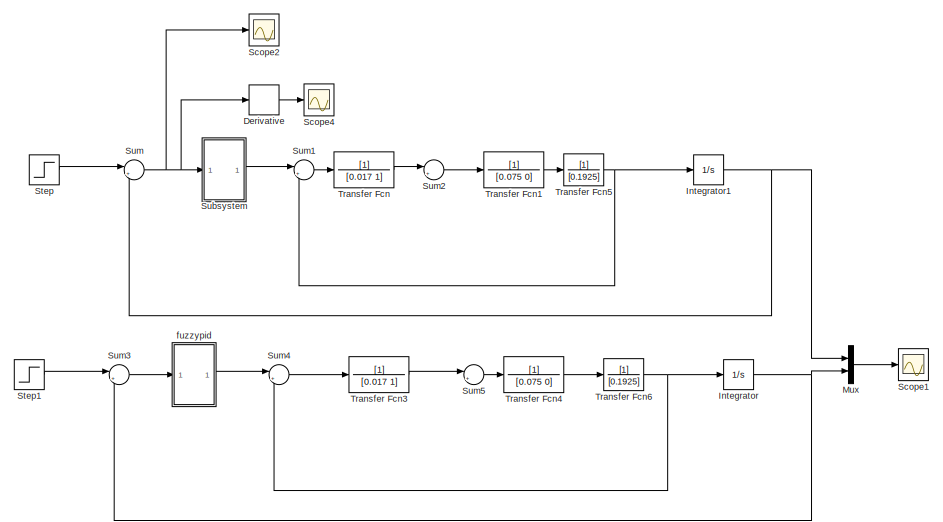
[diagram: root canvas - part 1/2, left side, full height]
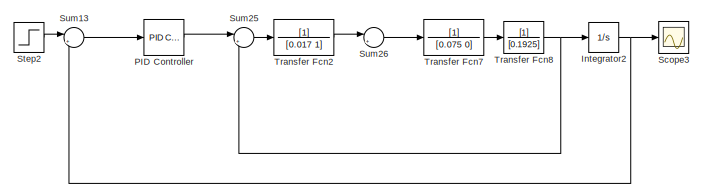
[diagram: root canvas - part 2/2, bottom right region]
MODEL slx_b7010f77cb78
KIND model
BLOCK [Derivative] Derivative
BLOCK [Integrator] Integrator
  Ports = [1, 1]
BLOCK [Integrator] Integrator1
  Ports = [1, 1]
BLOCK [Integrator] Integrator2
  Ports = [1, 1]
BLOCK [Mux] Mux
  DisplayOption = bar
  Inputs = 2
  Ports = [2, 1]
BLOCK [Reference] PID Controller  REF=simulink/Continuous/PID Controller
  AntiWindupMode = none
  Controller = PID
  D = -0.39390939873363
  DOutDataTypeStr = Inherit: Inherit via internal rule
  DOutMax = []
  DOutMin = []
  DParamDataTypeStr = Inherit: Inherit via internal rule
  DParamMax = []
  DParamMin = []
  DifferentiatorICPrevScaledInput = 0
  DifferentiatorOutDataTypeStr = Inherit: Inherit via internal rule
  DifferentiatorOutMax = []
  DifferentiatorOutMin = []
  ExternalReset = none
  FilterContinuousStateAttributes = ''
  FilterMethod = Forward Euler
  FilterOutDataTypeStr = Inherit: Inherit via internal rule
  FilterOutMax = []
  FilterOutMin = []
  FilterRTWStateStorageClass = Auto
  FilterStateMustResolveToSignalObject = off
  Form = Parallel
  I = 3.80775639731004
  IOutDataTypeStr = Inherit: Inherit via internal rule
  IOutMax = []
  IOutMin = []
  IParamDataTypeStr = Inherit: Inherit via internal rule
  IParamMax = []
  IParamMin = []
  IgnoreLimit = off
  InitialConditionForFilter = 0
  InitialConditionForIntegrator = 0
  InitialConditionSource = internal
  IntegratorContinuousStateAttributes = ''
  IntegratorMethod = Forward Euler
  IntegratorOutDataTypeStr = Inherit: Inherit via internal rule
  IntegratorOutMax = []
  IntegratorOutMin = []
  IntegratorRTWStateStorageClass = Auto
  IntegratorStateMustResolveToSignalObject = off
  Kb = 1
  KbOutDataTypeStr = Inherit: Inherit via internal rule
  KbOutMax = []
  KbOutMin = []
  KbParamDataTypeStr = Inherit: Inherit via internal rule
  KbParamMax = []
  KbParamMin = []
  Kt = 1
  KtOutDataTypeStr = Inherit: Inherit via internal rule
  KtOutMax = []
  KtOutMin = []
  KtParamDataTypeStr = Inherit: Inherit via internal rule
  KtParamMax = []
  KtParamMin = []
  LimitOutput = off
  LinearizeAsGain = on
  LockScale = off
  LowerSaturationLimit = -inf
  N = 19.6567757288827
  NOutDataTypeStr = Inherit: Inherit via internal rule
  NOutMax = []
  NOutMin = []
  NParamDataTypeStr = Inherit: Inherit via internal rule
  NParamMax = []
  NParamMin = []
  P = 22.0696160979341
  POutDataTypeStr = Inherit: Inherit via internal rule
  POutMax = []
  POutMin = []
  PParamDataTypeStr = Inherit: Inherit via internal rule
  PParamMax = []
  PParamMin = []
  Ports = [1, 1]
  RndMeth = Floor
  SampleTime = -1
  SaturateOnIntegerOverflow = off
  SaturationOutDataTypeStr = Inherit: Same as input
  SaturationOutMax = []
  SaturationOutMin = []
  SourceBlock = simulink/Continuous/PID Controller
  SourceType = PID 1dof
  SumAccumDataTypeStr = Inherit: Inherit via internal rule
  SumDAccumDataTypeStr = Inherit: Inherit via internal rule
  SumDOutDataTypeStr = Inherit: Inherit via internal rule
  SumDOutMax = []
  SumDOutMin = []
  SumI1AccumDataTypeStr = Inherit: Inherit via internal rule
  SumI1OutDataTypeStr = Inherit: Inherit via internal rule
  SumI1OutMax = []
  SumI1OutMin = []
  SumI2AccumDataTypeStr = Inherit: Inherit via internal rule
  SumI2OutDataTypeStr = Inherit: Inherit via internal rule
  SumI2OutMax = []
  SumI2OutMin = []
  SumI3AccumDataTypeStr = Inherit: Inherit via internal rule
  SumI3OutDataTypeStr = Inherit: Inherit via internal rule
  SumI3OutMax = []
  SumI3OutMin = []
  SumOutDataTypeStr = Inherit: Inherit via internal rule
  SumOutMax = []
  SumOutMin = []
  TimeDomain = Continuous-time
  TrackingMode = off
  UpperSaturationLimit = inf
  UseFilter = on
  ZeroCross = on
BLOCK [Scope] Scope1
  Floating = off
  NumInputPorts = 1
  Ports = [1]
  SaveName = ScopeData1
  ShowLegends = off
  YMax = 0
  YMin = -1.2e-11
BLOCK [Scope] Scope2
  Floating = off
  NumInputPorts = 1
  Ports = [1]
  SaveName = ScopeData3
  ShowLegends = off
  YMax = 0
  YMin = -1.2e-11
BLOCK [Scope] Scope3
  Floating = off
  NumInputPorts = 1
  Ports = [1]
  ShowLegends = off
  YMax = 0
  YMin = -1.2e-11
BLOCK [Scope] Scope4
  Floating = off
  LimitDataPoints = off
  NumInputPorts = 1
  Ports = [1]
  SaveName = ScopeData4
  ShowLegends = off
  YMax = 0
  YMin = -1.2e-11
BLOCK [Step] Step
  After = 50
  SampleTime = 0
BLOCK [Step] Step1
  After = 50
  SampleTime = 0
BLOCK [Step] Step2
  After = 50
  SampleTime = 0
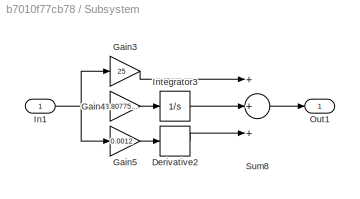
BLOCK [SubSystem] Subsystem
  Ports = [1, 1]
  RequestExecContextInheritance = off
BLOCK [Derivative] Subsystem/Derivative2
BLOCK [Gain] Subsystem/Gain3
  Gain = 25
  OutDataTypeStr = Inherit: Inherit via internal rule
  ParamDataTypeStr = Inherit: Inherit via internal rule
  SaturateOnIntegerOverflow = off
BLOCK [Gain] Subsystem/Gain4
  Gain = 3.80775639731004
  OutDataTypeStr = Inherit: Inherit via internal rule
  ParamDataTypeStr = Inherit: Inherit via internal rule
  SaturateOnIntegerOverflow = off
BLOCK [Gain] Subsystem/Gain5
  Gain = 0.0012
  OutDataTypeStr = Inherit: Inherit via internal rule
  ParamDataTypeStr = Inherit: Inherit via internal rule
  SaturateOnIntegerOverflow = off
BLOCK [Inport] Subsystem/In1
  IconDisplay = Port number
BLOCK [Integrator] Subsystem/Integrator3
  Ports = [1, 1]
BLOCK [Outport] Subsystem/Out1
  IconDisplay = Port number
BLOCK [Sum] Subsystem/Sum8
  InputSameDT = off
  Inputs = +++
  OutDataTypeStr = Inherit: Inherit via internal rule
  Ports = [3, 1]
  SaturateOnIntegerOverflow = off
BLOCK [Sum] Sum
  IconShape = round
  InputSameDT = off
  Inputs = |+-
  OutDataTypeStr = Inherit: Inherit via internal rule
  Ports = [2, 1]
  SaturateOnIntegerOverflow = off
BLOCK [Sum] Sum1
  IconShape = round
  InputSameDT = off
  Inputs = |+-
  OutDataTypeStr = Inherit: Inherit via internal rule
  Ports = [2, 1]
  SaturateOnIntegerOverflow = off
BLOCK [Sum] Sum13
  IconShape = round
  InputSameDT = off
  Inputs = |+-
  OutDataTypeStr = Inherit: Inherit via internal rule
  Ports = [2, 1]
  SaturateOnIntegerOverflow = off
BLOCK [Sum] Sum2
  IconShape = round
  InputSameDT = off
  Inputs = |+-
  OutDataTypeStr = Inherit: Inherit via internal rule
  Ports = [2, 1]
  SaturateOnIntegerOverflow = off
BLOCK [Sum] Sum25
  IconShape = round
  InputSameDT = off
  Inputs = |+-
  OutDataTypeStr = Inherit: Inherit via internal rule
  Ports = [2, 1]
  SaturateOnIntegerOverflow = off
BLOCK [Sum] Sum26
  IconShape = round
  InputSameDT = off
  Inputs = |+-
  OutDataTypeStr = Inherit: Inherit via internal rule
  Ports = [2, 1]
  SaturateOnIntegerOverflow = off
BLOCK [Sum] Sum3
  IconShape = round
  InputSameDT = off
  Inputs = |+-
  OutDataTypeStr = Inherit: Inherit via internal rule
  Ports = [2, 1]
  SaturateOnIntegerOverflow = off
BLOCK [Sum] Sum4
  IconShape = round
  InputSameDT = off
  Inputs = |+-
  OutDataTypeStr = Inherit: Inherit via internal rule
  Ports = [2, 1]
  SaturateOnIntegerOverflow = off
BLOCK [Sum] Sum5
  IconShape = round
  InputSameDT = off
  Inputs = |+-
  OutDataTypeStr = Inherit: Inherit via internal rule
  Ports = [2, 1]
  SaturateOnIntegerOverflow = off
BLOCK [TransferFcn] Transfer Fcn
  Denominator = [0.017 1]
BLOCK [TransferFcn] Transfer Fcn1
  Denominator = [0.075 0]
BLOCK [TransferFcn] Transfer Fcn2
  Denominator = [0.017 1]
BLOCK [TransferFcn] Transfer Fcn3
  Denominator = [0.017 1]
BLOCK [TransferFcn] Transfer Fcn4
  Denominator = [0.075 0]
BLOCK [TransferFcn] Transfer Fcn5
  Denominator = [0.1925]
BLOCK [TransferFcn] Transfer Fcn6
  Denominator = [0.1925]
BLOCK [TransferFcn] Transfer Fcn7
  Denominator = [0.075 0]
BLOCK [TransferFcn] Transfer Fcn8
  Denominator = [0.1925]
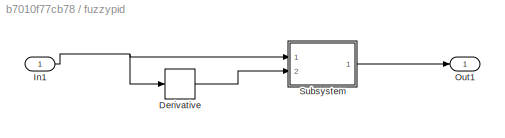
BLOCK [SubSystem] fuzzypid
  Ports = [1, 1]
  RequestExecContextInheritance = off
BLOCK [Derivative] fuzzypid/Derivative
BLOCK [Inport] fuzzypid/In1
  IconDisplay = Port number
BLOCK [Outport] fuzzypid/Out1
  IconDisplay = Port number
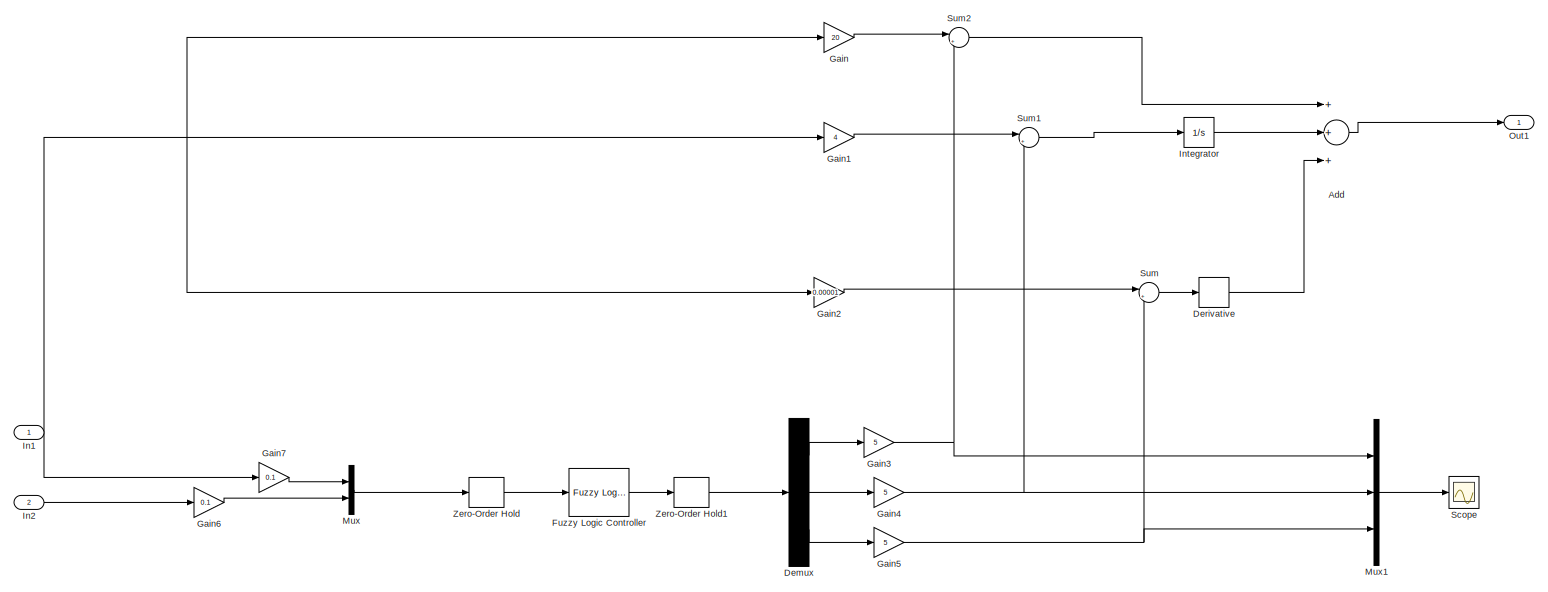
[diagram: fuzzypid/Subsystem - part 1/2, full width, middle band]
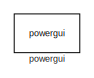
[diagram: fuzzypid/Subsystem - part 2/2, bottom left region]
BLOCK [SubSystem] fuzzypid/Subsystem
  Ports = [2, 1]
  RequestExecContextInheritance = off
BLOCK [Sum] fuzzypid/Subsystem/Add
  InputSameDT = off
  Inputs = +++
  OutDataTypeStr = Inherit: Inherit via internal rule
  Ports = [3, 1]
  SaturateOnIntegerOverflow = off
BLOCK [Demux] fuzzypid/Subsystem/Demux
  DisplayOption = bar
  Outputs = 3
  Ports = [1, 3]
BLOCK [Derivative] fuzzypid/Subsystem/Derivative
BLOCK [Reference] fuzzypid/Subsystem/Fuzzy Logic Controller  REF=fuzblock/Fuzzy Logic   (lib defined in mdl_858b3b3e7478)
Controller
  Ports = [1, 1]
  SourceBlock = fuzblock/Fuzzy Logic \nController
  SourceType = FIS
  fis = fuzzy_1
BLOCK [Gain] fuzzypid/Subsystem/Gain
  Gain = 20
  OutDataTypeStr = Inherit: Inherit via internal rule
  ParamDataTypeStr = Inherit: Inherit via internal rule
  SaturateOnIntegerOverflow = off
BLOCK [Gain] fuzzypid/Subsystem/Gain1
  Gain = 4
  OutDataTypeStr = Inherit: Inherit via internal rule
  ParamDataTypeStr = Inherit: Inherit via internal rule
  SaturateOnIntegerOverflow = off
BLOCK [Gain] fuzzypid/Subsystem/Gain2
  Gain = 0.00001
  OutDataTypeStr = Inherit: Inherit via internal rule
  ParamDataTypeStr = Inherit: Inherit via internal rule
  SaturateOnIntegerOverflow = off
BLOCK [Gain] fuzzypid/Subsystem/Gain3
  Gain = 5
  OutDataTypeStr = Inherit: Inherit via internal rule
  ParamDataTypeStr = Inherit: Inherit via internal rule
  SaturateOnIntegerOverflow = off
BLOCK [Gain] fuzzypid/Subsystem/Gain4
  Gain = 5
  OutDataTypeStr = Inherit: Inherit via internal rule
  ParamDataTypeStr = Inherit: Inherit via internal rule
  SaturateOnIntegerOverflow = off
BLOCK [Gain] fuzzypid/Subsystem/Gain5
  Gain = 5
  OutDataTypeStr = Inherit: Inherit via internal rule
  ParamDataTypeStr = Inherit: Inherit via internal rule
  SaturateOnIntegerOverflow = off
BLOCK [Gain] fuzzypid/Subsystem/Gain6
  Gain = 0.1
  OutDataTypeStr = Inherit: Inherit via internal rule
  ParamDataTypeStr = Inherit: Inherit via internal rule
  SaturateOnIntegerOverflow = off
BLOCK [Gain] fuzzypid/Subsystem/Gain7
  Gain = 0.1
  OutDataTypeStr = Inherit: Inherit via internal rule
  ParamDataTypeStr = Inherit: Inherit via internal rule
  SaturateOnIntegerOverflow = off
BLOCK [Inport] fuzzypid/Subsystem/In1
  IconDisplay = Port number
BLOCK [Inport] fuzzypid/Subsystem/In2
  IconDisplay = Port number
  Port = 2
BLOCK [Integrator] fuzzypid/Subsystem/Integrator
  Ports = [1, 1]
BLOCK [Mux] fuzzypid/Subsystem/Mux
  DisplayOption = bar
  Inputs = 2
  Ports = [2, 1]
BLOCK [Mux] fuzzypid/Subsystem/Mux1
  DisplayOption = bar
  Inputs = 3
  Ports = [3, 1]
BLOCK [Outport] fuzzypid/Subsystem/Out1
  IconDisplay = Port number
BLOCK [Scope] fuzzypid/Subsystem/Scope
  Floating = off
  NumInputPorts = 1
  Ports = [1]
  SaveName = ScopeData2
  ShowLegends = off
BLOCK [Sum] fuzzypid/Subsystem/Sum
  IconShape = round
  InputSameDT = off
  Inputs = |++
  OutDataTypeStr = Inherit: Inherit via internal rule
  Ports = [2, 1]
  SaturateOnIntegerOverflow = off
BLOCK [Sum] fuzzypid/Subsystem/Sum1
  IconShape = round
  InputSameDT = off
  Inputs = |++
  OutDataTypeStr = Inherit: Inherit via internal rule
  Ports = [2, 1]
  SaturateOnIntegerOverflow = off
BLOCK [Sum] fuzzypid/Subsystem/Sum2
  IconShape = round
  InputSameDT = off
  Inputs = |++
  OutDataTypeStr = Inherit: Inherit via internal rule
  Ports = [2, 1]
  SaturateOnIntegerOverflow = off
BLOCK [ZeroOrderHold] fuzzypid/Subsystem/Zero-Order Hold
  SampleTime = 0.01
BLOCK [ZeroOrderHold] fuzzypid/Subsystem/Zero-Order Hold1
  SampleTime = 0.01
BLOCK [Reference] fuzzypid/Subsystem/powergui  REF=powerlib/powergui
  DisableRonSwitches = off
  DisableSnubberDevices = off
  DisableVfSwitches = off
  DisplayEquations = off
  DisplayStyle = 1
  EnableUseOfTLC = off
  ErrMax = 1e-4
  Frange = [0:2:500]
  FreqAxis = off
  FunctionMessages = off
  HookPort = off
  Interpol = off
  Iterations = 50
  MaxFrequency = 1000
  Pbase = 100e6
  Ports = []
  Priority = 1
  ResistiveCurrentMeasurement = off
  RestoreLinks = warning
  RmsSteady = 1
  SPID = off
  SampleTime = 50e-6
  ShowGrid = off
  SolverType = Tustin/Backward Euler (TBE)
  SourceBlock = powerlib/powergui
  SourceType = PSB option menu block
  StartTime = 0.0
  SwTol = 0
  Ts = 100
  UnitsV = kV
  UnitsW = MW
  UserDataPersistent = on
  Xlog = on
  Ylog = off
  ZoomFFT = off
  cycles = 1
  display = off
  echomessages = off
  frequency = 60
  frequencyindice = 60
  frequencyindicesteady = 1
  fundamental = 60
  methode = off
  save = off
  structure = 0
  variable = ZData
  x0status = blocks
LINE Derivative:1 -> Scope4:1
NET Integrator1:1 -> Mux:1, Sum:2
NET Integrator2:1 -> Scope3:1, Sum13:2
NET Integrator:1 -> Mux:2, Sum3:2
LINE Mux:1 -> Scope1:1
LINE PID Controller:1 -> Sum25:1
LINE Step1:1 -> Sum3:1
LINE Step2:1 -> Sum13:1
LINE Step:1 -> Sum:1
LINE Subsystem/Derivative2:1 -> Subsystem/Sum8:3
LINE Subsystem/Gain3:1 -> Subsystem/Sum8:1
LINE Subsystem/Gain4:1 -> Subsystem/Integrator3:1
LINE Subsystem/Gain5:1 -> Subsystem/Derivative2:1
NET Subsystem/In1:1 -> Subsystem/Gain3:1, Subsystem/Gain4:1, Subsystem/Gain5:1
LINE Subsystem/Integrator3:1 -> Subsystem/Sum8:2
LINE Subsystem/Sum8:1 -> Subsystem/Out1:1
LINE Subsystem:1 -> Sum1:1
LINE Sum13:1 -> PID Controller:1
LINE Sum1:1 -> Transfer Fcn:1
LINE Sum25:1 -> Transfer Fcn2:1
LINE Sum26:1 -> Transfer Fcn7:1
LINE Sum2:1 -> Transfer Fcn1:1
LINE Sum3:1 -> fuzzypid:1
LINE Sum4:1 -> Transfer Fcn3:1
LINE Sum5:1 -> Transfer Fcn4:1
NET Sum:1 -> Derivative:1, Scope2:1, Subsystem:1
LINE Transfer Fcn1:1 -> Transfer Fcn5:1
LINE Transfer Fcn2:1 -> Sum26:1
LINE Transfer Fcn3:1 -> Sum5:1
LINE Transfer Fcn4:1 -> Transfer Fcn6:1
NET Transfer Fcn5:1 -> Integrator1:1, Sum1:2
NET Transfer Fcn6:1 -> Integrator:1, Sum4:2
LINE Transfer Fcn7:1 -> Transfer Fcn8:1
NET Transfer Fcn8:1 -> Integrator2:1, Sum25:2
LINE Transfer Fcn:1 -> Sum2:1
LINE fuzzypid/Derivative:1 -> fuzzypid/Subsystem:2
NET fuzzypid/In1:1 -> fuzzypid/Derivative:1, fuzzypid/Subsystem:1
LINE fuzzypid/Subsystem/Add:1 -> fuzzypid/Subsystem/Out1:1
LINE fuzzypid/Subsystem/Demux:1 -> fuzzypid/Subsystem/Gain3:1
LINE fuzzypid/Subsystem/Demux:2 -> fuzzypid/Subsystem/Gain4:1
LINE fuzzypid/Subsystem/Demux:3 -> fuzzypid/Subsystem/Gain5:1
LINE fuzzypid/Subsystem/Derivative:1 -> fuzzypid/Subsystem/Add:3
LINE fuzzypid/Subsystem/Fuzzy Logic Controller:1 -> fuzzypid/Subsystem/Zero-Order Hold1:1
LINE fuzzypid/Subsystem/Gain1:1 -> fuzzypid/Subsystem/Sum1:1
LINE fuzzypid/Subsystem/Gain2:1 -> fuzzypid/Subsystem/Sum:1
NET fuzzypid/Subsystem/Gain3:1 -> fuzzypid/Subsystem/Mux1:1, fuzzypid/Subsystem/Sum2:2
NET fuzzypid/Subsystem/Gain4:1 -> fuzzypid/Subsystem/Mux1:2, fuzzypid/Subsystem/Sum1:2
NET fuzzypid/Subsystem/Gain5:1 -> fuzzypid/Subsystem/Mux1:3, fuzzypid/Subsystem/Sum:2
LINE fuzzypid/Subsystem/Gain6:1 -> fuzzypid/Subsystem/Mux:2
LINE fuzzypid/Subsystem/Gain7:1 -> fuzzypid/Subsystem/Mux:1
LINE fuzzypid/Subsystem/Gain:1 -> fuzzypid/Subsystem/Sum2:1
NET fuzzypid/Subsystem/In1:1 -> fuzzypid/Subsystem/Gain1:1, fuzzypid/Subsystem/Gain2:1, fuzzypid/Subsystem/Gain7:1, fuzzypid/Subsystem/Gain:1
LINE fuzzypid/Subsystem/In2:1 -> fuzzypid/Subsystem/Gain6:1
LINE fuzzypid/Subsystem/Integrator:1 -> fuzzypid/Subsystem/Add:2
LINE fuzzypid/Subsystem/Mux1:1 -> fuzzypid/Subsystem/Scope:1
LINE fuzzypid/Subsystem/Mux:1 -> fuzzypid/Subsystem/Zero-Order Hold:1
LINE fuzzypid/Subsystem/Sum1:1 -> fuzzypid/Subsystem/Integrator:1
LINE fuzzypid/Subsystem/Sum2:1 -> fuzzypid/Subsystem/Add:1
LINE fuzzypid/Subsystem/Sum:1 -> fuzzypid/Subsystem/Derivative:1
LINE fuzzypid/Subsystem/Zero-Order Hold1:1 -> fuzzypid/Subsystem/Demux:1
LINE fuzzypid/Subsystem/Zero-Order Hold:1 -> fuzzypid/Subsystem/Fuzzy Logic Controller:1
LINE fuzzypid/Subsystem:1 -> fuzzypid/Out1:1
LINE fuzzypid:1 -> Sum4:1
note: NET lines group one-source signal fan-out (src -> all destinations, sorted); 1:1 wires keep LINE
